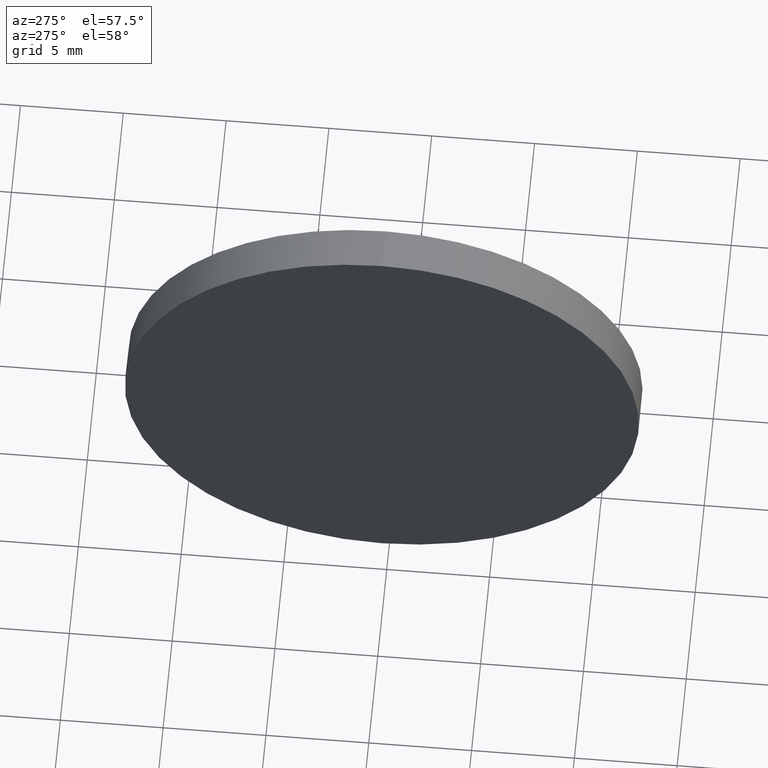
[diagram: clean part render]
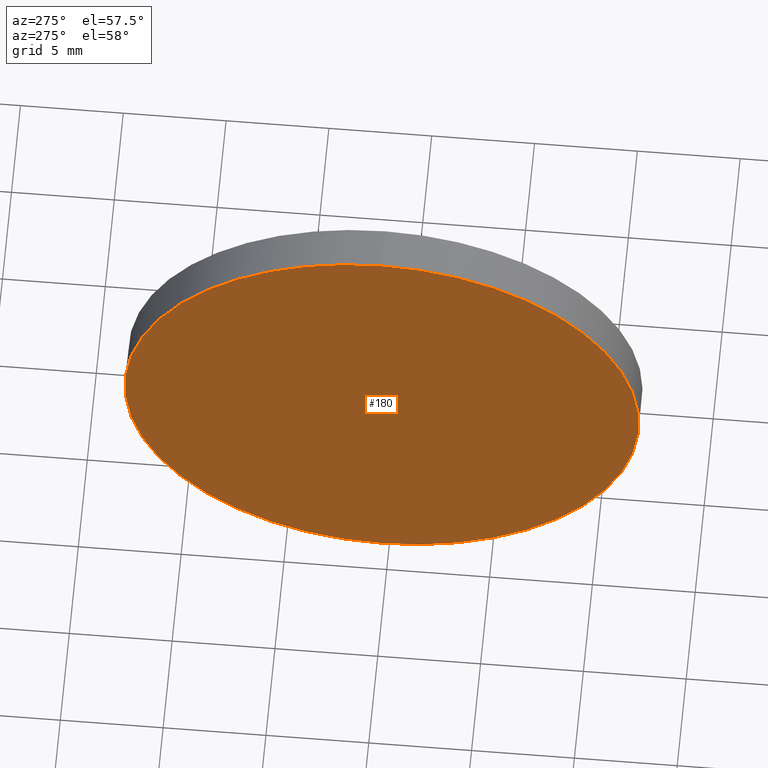
[diagram: same view with one face highlighted and labeled with its STEP entity id]
A machine part, auxiliary view. The second image highlights one B-rep face of the part: STEP entity #180.
In plain terms, the highlighted planar face has unit normal (1, 0, 0).
Its self-contained STEP definition (entity closure, byte-faithful):
#1 = DIRECTION ( 'NONE',  ( 1.000000000000000000, 0.0000000000000000000, 0.0000000000000000000 ) ) ;
#16 = EDGE_CURVE ( 'NONE', #163, #184, #170, .T. ) ;
#22 = CARTESIAN_POINT ( 'NONE',  ( 496.1420614191210300, 145.3379031391612800, 0.0000000000000000000 ) ) ;
#23 = ORIENTED_EDGE ( 'NONE', *, *, #84, .T. ) ;
#24 = CARTESIAN_POINT ( 'NONE',  ( 496.1420614191210300, 145.3379031391612800, 12.50000000000001100 ) ) ;
#49 = AXIS2_PLACEMENT_3D ( 'NONE', #22, #127, #53 ) ;
#53 = DIRECTION ( 'NONE',  ( 0.0000000000000000000, 0.0000000000000000000, 1.000000000000000000 ) ) ;
#58 = CARTESIAN_POINT ( 'NONE',  ( 496.1420614191210300, 145.3379031391612800, 0.0000000000000000000 ) ) ;
#81 = AXIS2_PLACEMENT_3D ( 'NONE', #58, #1, #100 ) ;
#84 = EDGE_CURVE ( 'NONE', #184, #163, #89, .T. ) ;
#89 = CIRCLE ( 'NONE', #124, 12.50000000000001100 ) ;
#95 = DIRECTION ( 'NONE',  ( 0.0000000000000000000, 0.0000000000000000000, 1.000000000000000000 ) ) ;
#96 = FACE_OUTER_BOUND ( 'NONE', #99, .T. ) ;
#98 = CARTESIAN_POINT ( 'NONE',  ( 496.1420614191210300, 145.3379031391612800, 0.0000000000000000000 ) ) ;
#99 = EDGE_LOOP ( 'NONE', ( #23, #151 ) ) ;
#100 = DIRECTION ( 'NONE',  ( 0.0000000000000000000, 0.0000000000000000000, -1.000000000000000000 ) ) ;
#123 = DIRECTION ( 'NONE',  ( -1.000000000000000000, -0.0000000000000000000, -0.0000000000000000000 ) ) ;
#124 = AXIS2_PLACEMENT_3D ( 'NONE', #98, #123, #95 ) ;
#127 = DIRECTION ( 'NONE',  ( -1.000000000000000000, -0.0000000000000000000, -0.0000000000000000000 ) ) ;
#142 = PLANE ( 'NONE',  #81 ) ;
#151 = ORIENTED_EDGE ( 'NONE', *, *, #16, .T. ) ;
#163 = VERTEX_POINT ( 'NONE', #172 ) ;
#170 = CIRCLE ( 'NONE', #49, 12.50000000000001100 ) ;
#172 = CARTESIAN_POINT ( 'NONE',  ( 496.1420614191210300, 145.3379031391612800, -12.50000000000001100 ) ) ;
#180 = ADVANCED_FACE ( 'NONE', ( #96 ), #142, .F. ) ;
#184 = VERTEX_POINT ( 'NONE', #24 ) ;